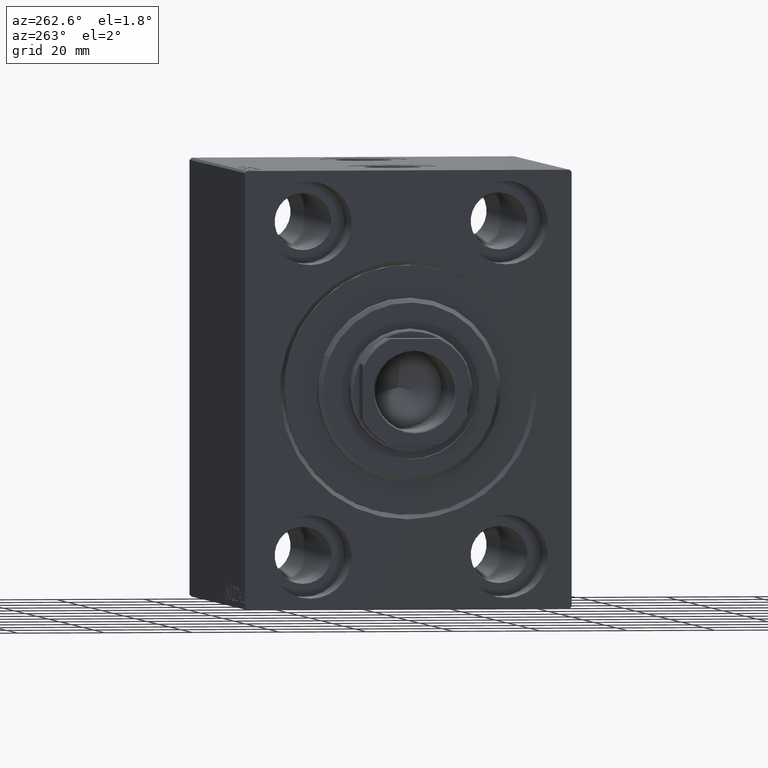
[diagram: clean part render]
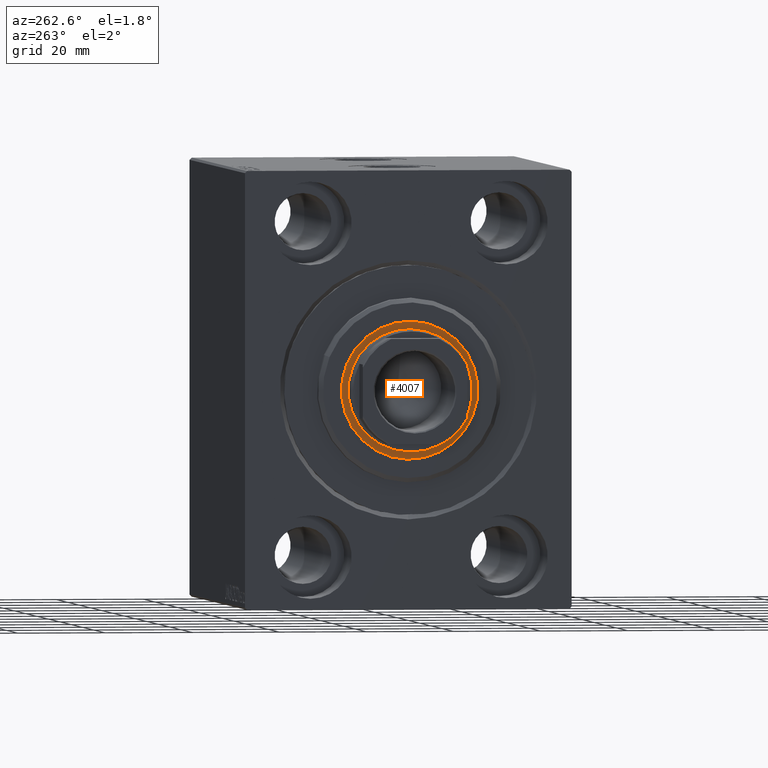
[diagram: same view with one face highlighted and labeled with its STEP entity id]
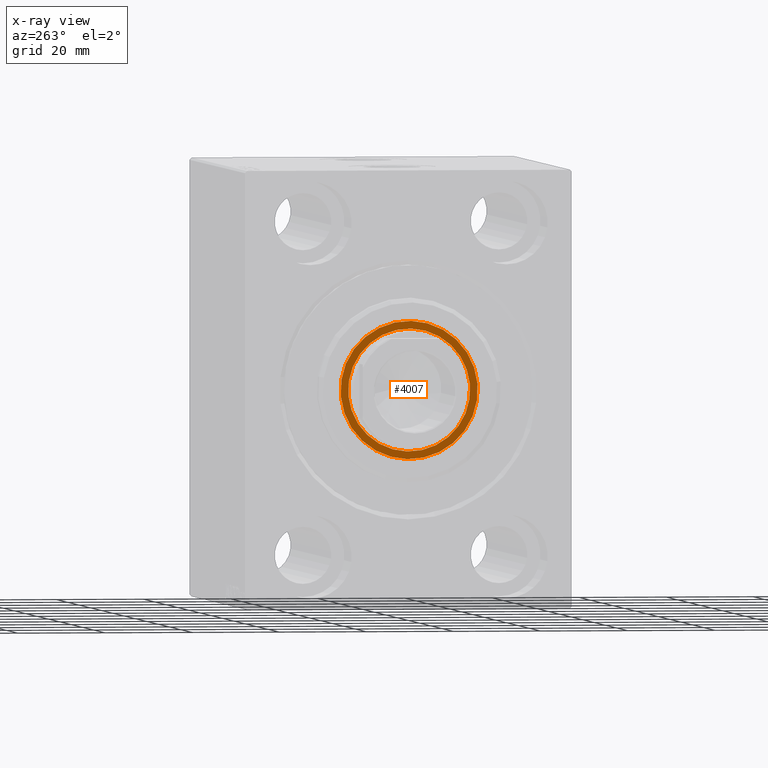
[diagram: x-ray of the same camera — body ghosted, the highlighted face saturated]
A machine part, auxiliary view. The second image highlights one B-rep face of the part: STEP entity #4007.
The next image is the same camera in x-ray: the body ghosted, the highlighted face saturated — about 0% of this face is hidden behind the body in this view.
In plain terms, the highlighted planar face has unit normal (-1, 0, 0).
Its self-contained STEP definition (entity closure, byte-faithful):
#883 = CARTESIAN_POINT ( 'NONE',  ( 1.499999999999999556, 0.000000000000000000, 0.000000000000000000 ) ) ;
#2111 = ORIENTED_EDGE ( 'NONE', *, *, #8285, .F. ) ;
#2790 = ORIENTED_EDGE ( 'NONE', *, *, #6152, .F. ) ;
#3446 = AXIS2_PLACEMENT_3D ( 'NONE', #883, #14474, #21388 ) ;
#4007 = ADVANCED_FACE ( 'NONE', ( #31781, #8140 ), #11261, .T. ) ;
#4369 = DIRECTION ( 'NONE',  ( 1.000000000000000000, 0.000000000000000000, 0.000000000000000000 ) ) ;
#4870 = CARTESIAN_POINT ( 'NONE',  ( 1.500000000000000000, 0.000000000000000000, 15.75000000000000000 ) ) ;
#5080 = CARTESIAN_POINT ( 'NONE',  ( 1.500000000000000000, 0.000000000000000000, 0.000000000000000000 ) ) ;
#6152 = EDGE_CURVE ( 'NONE', #13712, #9474, #38272, .T. ) ;
#6604 = VERTEX_POINT ( 'NONE', #27912 ) ;
#8140 = FACE_OUTER_BOUND ( 'NONE', #28630, .T. ) ;
#8285 = EDGE_CURVE ( 'NONE', #9474, #13712, #22689, .T. ) ;
#9474 = VERTEX_POINT ( 'NONE', #13047 ) ;
#11261 = PLANE ( 'NONE',  #33228 ) ;
#13047 = CARTESIAN_POINT ( 'NONE',  ( 1.499999999999999556, 0.000000000000000000, -14.00000000000000178 ) ) ;
#13712 = VERTEX_POINT ( 'NONE', #40937 ) ;
#14282 = CIRCLE ( 'NONE', #39934, 15.75000000000000000 ) ;
#14474 = DIRECTION ( 'NONE',  ( 1.000000000000000000, 0.000000000000000000, 0.000000000000000000 ) ) ;
#15127 = VERTEX_POINT ( 'NONE', #4870 ) ;
#15629 = EDGE_CURVE ( 'NONE', #6604, #15127, #14282, .T. ) ;
#19059 = DIRECTION ( 'NONE',  ( 1.000000000000000000, 0.000000000000000000, 0.000000000000000000 ) ) ;
#21388 = DIRECTION ( 'NONE',  ( 0.000000000000000000, 0.000000000000000000, -1.000000000000000000 ) ) ;
#22464 = DIRECTION ( 'NONE',  ( 1.000000000000000000, 0.000000000000000000, 0.000000000000000000 ) ) ;
#22689 = CIRCLE ( 'NONE', #3446, 14.00000000000000178 ) ;
#22920 = DIRECTION ( 'NONE',  ( 0.000000000000000000, 0.000000000000000000, -1.000000000000000000 ) ) ;
#23642 = CARTESIAN_POINT ( 'NONE',  ( 1.500000000000000000, 0.000000000000000000, 0.000000000000000000 ) ) ;
#23863 = DIRECTION ( 'NONE',  ( 0.000000000000000000, 0.000000000000000000, -1.000000000000000000 ) ) ;
#24064 = ORIENTED_EDGE ( 'NONE', *, *, #25939, .T. ) ;
#25023 = ORIENTED_EDGE ( 'NONE', *, *, #15629, .T. ) ;
#25308 = DIRECTION ( 'NONE',  ( 0.000000000000000000, 0.000000000000000000, -1.000000000000000000 ) ) ;
#25939 = EDGE_CURVE ( 'NONE', #15127, #6604, #34386, .T. ) ;
#27912 = CARTESIAN_POINT ( 'NONE',  ( 1.500000000000000000, 1.928818708657080950E-15, -15.75000000000000000 ) ) ;
#28630 = EDGE_LOOP ( 'NONE', ( #24064, #25023 ) ) ;
#29390 = AXIS2_PLACEMENT_3D ( 'NONE', #5080, #22464, #22920 ) ;
#31781 = FACE_BOUND ( 'NONE', #38421, .T. ) ;
#33228 = AXIS2_PLACEMENT_3D ( 'NONE', #38469, #4369, #25308 ) ;
#34004 = AXIS2_PLACEMENT_3D ( 'NONE', #35994, #19059, #39564 ) ;
#34101 = DIRECTION ( 'NONE',  ( 1.000000000000000000, 0.000000000000000000, 0.000000000000000000 ) ) ;
#34386 = CIRCLE ( 'NONE', #29390, 15.75000000000000000 ) ;
#35994 = CARTESIAN_POINT ( 'NONE',  ( 1.499999999999999556, 0.000000000000000000, 0.000000000000000000 ) ) ;
#38272 = CIRCLE ( 'NONE', #34004, 14.00000000000000178 ) ;
#38421 = EDGE_LOOP ( 'NONE', ( #2111, #2790 ) ) ;
#38469 = CARTESIAN_POINT ( 'NONE',  ( 1.500000000000000000, 0.000000000000000000, 0.000000000000000000 ) ) ;
#39564 = DIRECTION ( 'NONE',  ( 0.000000000000000000, 0.000000000000000000, -1.000000000000000000 ) ) ;
#39934 = AXIS2_PLACEMENT_3D ( 'NONE', #23642, #34101, #23863 ) ;
#40937 = CARTESIAN_POINT ( 'NONE',  ( 1.499999999999999556, 1.714505518806294835E-15, 14.00000000000000178 ) ) ;